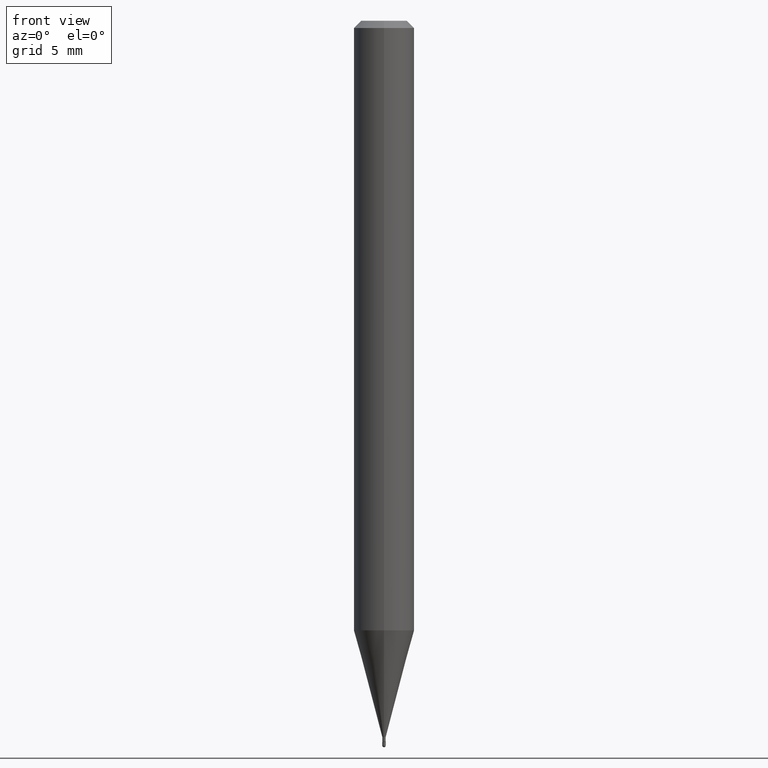
[diagram: clean part render]
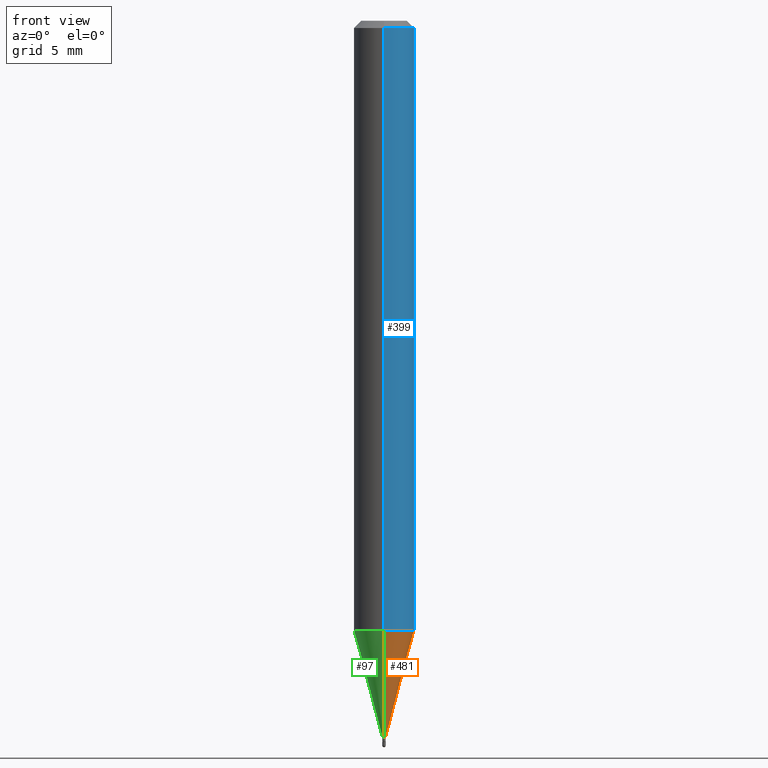
[diagram: same view with three faces highlighted in distinct colors, each labeled with its STEP entity id]
A machine part, front view with three faces highlighted in distinct colors.
Their STEP definitions:

[orange] entity #481 — the highlighted conical surface has half-angle 15 deg.
#6 = LINE ( 'NONE', #8, #76 ) ;
#8 = CARTESIAN_POINT ( 'NONE',  ( -2.444036937186523075E-17, -0.003500000000005088017, -1.478999999999999648 ) ) ;
#30 = DIRECTION ( 'NONE',  ( -2.445471304092721818E-29, 3.491477761697311641E-15, 1.000000000000000000 ) ) ;
#40 = EDGE_CURVE ( 'NONE', #250, #254, #111, .T. ) ;
#47 = ORIENTED_EDGE ( 'NONE', *, *, #148, .T. ) ;
#66 = AXIS2_PLACEMENT_3D ( 'NONE', #247, #396, #208 ) ;
#76 = VECTOR ( 'NONE', #275, 39.37007874015748854 ) ;
#77 = AXIS2_PLACEMENT_3D ( 'NONE', #224, #505, #381 ) ;
#111 = CIRCLE ( 'NONE', #66, 0.003499999999999924179 ) ;
#133 = VERTEX_POINT ( 'NONE', #496 ) ;
#148 = EDGE_CURVE ( 'NONE', #254, #361, #332, .T. ) ;
#149 = DIRECTION ( 'NONE',  ( 1.839019923739602682E-15, 0.2588190451025252914, 0.9659258262890670910 ) ) ;
#184 = EDGE_LOOP ( 'NONE', ( #440, #47, #401, #350 ) ) ;
#208 = DIRECTION ( 'NONE',  ( -6.982962677686265133E-15, -1.000000000000000000, 0.000000000000000000 ) ) ;
#224 = CARTESIAN_POINT ( 'NONE',  ( 3.078381292588917151E-29, -4.395103637941402881E-15, -1.258809002353436624 ) ) ;
#234 = EDGE_CURVE ( 'NONE', #250, #133, #6, .T. ) ;
#247 = CARTESIAN_POINT ( 'NONE',  ( 3.616852058753135017E-29, -5.163895609550323406E-15, -1.478999999999999648 ) ) ;
#249 = CARTESIAN_POINT ( 'NONE',  ( 4.440892098500932831E-16, 0.06249999999999561462, -1.258809002353437068 ) ) ;
#250 = VERTEX_POINT ( 'NONE', #468 ) ;
#254 = VERTEX_POINT ( 'NONE', #433 ) ;
#261 = FACE_OUTER_BOUND ( 'NONE', #184, .T. ) ;
#275 = DIRECTION ( 'NONE',  ( -1.807323732225332900E-15, -0.2588190451025185190, 0.9659258262890689783 ) ) ;
#297 = CIRCLE ( 'NONE', #77, 0.06250000000000000000 ) ;
#308 = AXIS2_PLACEMENT_3D ( 'NONE', #495, #30, #452 ) ;
#332 = LINE ( 'NONE', #500, #386 ) ;
#350 = ORIENTED_EDGE ( 'NONE', *, *, #234, .F. ) ;
#361 = VERTEX_POINT ( 'NONE', #249 ) ;
#381 = DIRECTION ( 'NONE',  ( -6.982962677686265922E-15, -1.000000000000000000, 4.370956789862821150E-15 ) ) ;
#386 = VECTOR ( 'NONE', #149, 39.37007874015748143 ) ;
#396 = DIRECTION ( 'NONE',  ( -2.445471304092721818E-29, 3.491477761697311641E-15, 1.000000000000000000 ) ) ;
#401 = ORIENTED_EDGE ( 'NONE', *, *, #462, .F. ) ;
#425 = CONICAL_SURFACE ( 'NONE', #308, 0.003499999999999924179, 0.2617993877991506291 ) ;
#433 = CARTESIAN_POINT ( 'NONE',  ( 2.344791028008663525E-16, 0.003499999999994760341, -1.478999999999999648 ) ) ;
#440 = ORIENTED_EDGE ( 'NONE', *, *, #40, .T. ) ;
#452 = DIRECTION ( 'NONE',  ( -6.982962677686265133E-15, -1.000000000000000000, 0.000000000000000000 ) ) ;
#462 = EDGE_CURVE ( 'NONE', #133, #361, #297, .T. ) ;
#468 = CARTESIAN_POINT ( 'NONE',  ( -2.444036937186523075E-17, -0.003500000000005088017, -1.478999999999999648 ) ) ;
#481 = ADVANCED_FACE ( 'NONE', ( #261 ), #425, .T. ) ;
#495 = CARTESIAN_POINT ( 'NONE',  ( 3.616852058753135017E-29, -5.163895609550323406E-15, -1.478999999999999648 ) ) ;
#496 = CARTESIAN_POINT ( 'NONE',  ( -4.364351673553609038E-16, -0.06250000000000439926, -1.258809002353436401 ) ) ;
#500 = CARTESIAN_POINT ( 'NONE',  ( 2.486899575163913210E-17, 0.003499999999994760341, -1.478999999999999648 ) ) ;
#505 = DIRECTION ( 'NONE',  ( -2.445471304092721818E-29, 3.491477761697311641E-15, 1.000000000000000000 ) ) ;

[blue] entity #399 — the highlighted cylindrical surface (edge-blend (fillet) strip) has radius 1.5875 mm, axis along (-0, 0, 1).
#3 = EDGE_CURVE ( 'NONE', #361, #146, #306, .T. ) ;
#7 = DIRECTION ( 'NONE',  ( -6.982962677686265922E-15, -1.000000000000000000, 3.483106191921935554E-15 ) ) ;
#9 = EDGE_CURVE ( 'NONE', #384, #146, #501, .T. ) ;
#51 = ORIENTED_EDGE ( 'NONE', *, *, #9, .F. ) ;
#55 = CARTESIAN_POINT ( 'NONE',  ( -4.364351673553916201E-16, -0.06250000000000000000, 2.182173601060819776E-16 ) ) ;
#77 = AXIS2_PLACEMENT_3D ( 'NONE', #224, #505, #381 ) ;
#133 = VERTEX_POINT ( 'NONE', #496 ) ;
#134 = FACE_OUTER_BOUND ( 'NONE', #426, .T. ) ;
#145 = CARTESIAN_POINT ( 'NONE',  ( 4.440892098500935790E-16, 0.06249999999999995143, -0.01499999999999997863 ) ) ;
#146 = VERTEX_POINT ( 'NONE', #145 ) ;
#165 = VECTOR ( 'NONE', #466, 39.37007874015748143 ) ;
#198 = AXIS2_PLACEMENT_3D ( 'NONE', #281, #451, #333 ) ;
#203 = CARTESIAN_POINT ( 'NONE',  ( 4.440892098500625669E-16, 0.06250000000000000000, -2.182173601060819776E-16 ) ) ;
#224 = CARTESIAN_POINT ( 'NONE',  ( 3.078381292588917151E-29, -4.395103637941402881E-15, -1.258809002353436624 ) ) ;
#244 = AXIS2_PLACEMENT_3D ( 'NONE', #476, #471, #7 ) ;
#249 = CARTESIAN_POINT ( 'NONE',  ( 4.440892098500932831E-16, 0.06249999999999561462, -1.258809002353437068 ) ) ;
#262 = CARTESIAN_POINT ( 'NONE',  ( -4.364351673553912750E-16, -0.06250000000000005551, -0.01499999999999954321 ) ) ;
#276 = LINE ( 'NONE', #55, #347 ) ;
#281 = CARTESIAN_POINT ( 'NONE',  ( 0.000000000000000000, 0.000000000000000000, 0.000000000000000000 ) ) ;
#284 = CYLINDRICAL_SURFACE ( 'NONE', #198, 0.06250000000000000000 ) ;
#297 = CIRCLE ( 'NONE', #77, 0.06250000000000000000 ) ;
#300 = EDGE_CURVE ( 'NONE', #133, #384, #276, .T. ) ;
#306 = LINE ( 'NONE', #203, #165 ) ;
#320 = ORIENTED_EDGE ( 'NONE', *, *, #462, .T. ) ;
#333 = DIRECTION ( 'NONE',  ( -6.982962677686265922E-15, -1.000000000000000000, 3.491477761697311641E-15 ) ) ;
#347 = VECTOR ( 'NONE', #354, 39.37007874015748143 ) ;
#354 = DIRECTION ( 'NONE',  ( -2.445471304092721818E-29, 3.491477761697311641E-15, 1.000000000000000000 ) ) ;
#361 = VERTEX_POINT ( 'NONE', #249 ) ;
#364 = ORIENTED_EDGE ( 'NONE', *, *, #300, .F. ) ;
#366 = ORIENTED_EDGE ( 'NONE', *, *, #3, .T. ) ;
#381 = DIRECTION ( 'NONE',  ( -6.982962677686265922E-15, -1.000000000000000000, 4.370956789862821150E-15 ) ) ;
#384 = VERTEX_POINT ( 'NONE', #262 ) ;
#399 = ADVANCED_FACE ( 'NONE', ( #134 ), #284, .T. ) ;
#426 = EDGE_LOOP ( 'NONE', ( #320, #366, #51, #364 ) ) ;
#451 = DIRECTION ( 'NONE',  ( -2.445471304092721818E-29, 3.491477761697311641E-15, 1.000000000000000000 ) ) ;
#462 = EDGE_CURVE ( 'NONE', #133, #361, #297, .T. ) ;
#466 = DIRECTION ( 'NONE',  ( -2.445471304092721818E-29, 3.491477761697311641E-15, 1.000000000000000000 ) ) ;
#471 = DIRECTION ( 'NONE',  ( -2.445471304092721818E-29, 3.491477761697311641E-15, 1.000000000000000000 ) ) ;
#476 = CARTESIAN_POINT ( 'NONE',  ( 3.668206956139024136E-31, -5.237216642545884237E-17, -0.01499999999999976179 ) ) ;
#496 = CARTESIAN_POINT ( 'NONE',  ( -4.364351673553609038E-16, -0.06250000000000439926, -1.258809002353436401 ) ) ;
#501 = CIRCLE ( 'NONE', #244, 0.06250000000000000000 ) ;
#505 = DIRECTION ( 'NONE',  ( -2.445471304092721818E-29, 3.491477761697311641E-15, 1.000000000000000000 ) ) ;

[green] entity #97 — the highlighted conical surface has half-angle 15 deg.
#6 = LINE ( 'NONE', #8, #76 ) ;
#8 = CARTESIAN_POINT ( 'NONE',  ( -2.444036937186523075E-17, -0.003500000000005088017, -1.478999999999999648 ) ) ;
#24 = CIRCLE ( 'NONE', #94, 0.06250000000000000000 ) ;
#54 = CARTESIAN_POINT ( 'NONE',  ( 3.078381292588917151E-29, -4.395103637941402881E-15, -1.258809002353436624 ) ) ;
#59 = EDGE_CURVE ( 'NONE', #361, #133, #24, .T. ) ;
#76 = VECTOR ( 'NONE', #275, 39.37007874015748854 ) ;
#80 = FACE_OUTER_BOUND ( 'NONE', #497, .T. ) ;
#94 = AXIS2_PLACEMENT_3D ( 'NONE', #54, #125, #171 ) ;
#97 = ADVANCED_FACE ( 'NONE', ( #80 ), #258, .T. ) ;
#113 = ORIENTED_EDGE ( 'NONE', *, *, #162, .T. ) ;
#120 = DIRECTION ( 'NONE',  ( -2.445471304092721818E-29, 3.491477761697311641E-15, 1.000000000000000000 ) ) ;
#123 = AXIS2_PLACEMENT_3D ( 'NONE', #339, #512, #419 ) ;
#125 = DIRECTION ( 'NONE',  ( -2.445471304092721818E-29, 3.491477761697311641E-15, 1.000000000000000000 ) ) ;
#133 = VERTEX_POINT ( 'NONE', #496 ) ;
#148 = EDGE_CURVE ( 'NONE', #254, #361, #332, .T. ) ;
#149 = DIRECTION ( 'NONE',  ( 1.839019923739602682E-15, 0.2588190451025252914, 0.9659258262890670910 ) ) ;
#162 = EDGE_CURVE ( 'NONE', #254, #250, #465, .T. ) ;
#163 = DIRECTION ( 'NONE',  ( -6.982962677686265133E-15, -1.000000000000000000, 0.000000000000000000 ) ) ;
#171 = DIRECTION ( 'NONE',  ( -6.982962677686265922E-15, -1.000000000000000000, 4.370956789862821150E-15 ) ) ;
#234 = EDGE_CURVE ( 'NONE', #250, #133, #6, .T. ) ;
#249 = CARTESIAN_POINT ( 'NONE',  ( 4.440892098500932831E-16, 0.06249999999999561462, -1.258809002353437068 ) ) ;
#250 = VERTEX_POINT ( 'NONE', #468 ) ;
#254 = VERTEX_POINT ( 'NONE', #433 ) ;
#258 = CONICAL_SURFACE ( 'NONE', #424, 0.003499999999999924179, 0.2617993877991506291 ) ;
#275 = DIRECTION ( 'NONE',  ( -1.807323732225332900E-15, -0.2588190451025185190, 0.9659258262890689783 ) ) ;
#285 = ORIENTED_EDGE ( 'NONE', *, *, #234, .T. ) ;
#319 = ORIENTED_EDGE ( 'NONE', *, *, #148, .F. ) ;
#332 = LINE ( 'NONE', #500, #386 ) ;
#338 = CARTESIAN_POINT ( 'NONE',  ( 3.616852058753135017E-29, -5.163895609550323406E-15, -1.478999999999999648 ) ) ;
#339 = CARTESIAN_POINT ( 'NONE',  ( 3.616852058753135017E-29, -5.163895609550323406E-15, -1.478999999999999648 ) ) ;
#361 = VERTEX_POINT ( 'NONE', #249 ) ;
#386 = VECTOR ( 'NONE', #149, 39.37007874015748143 ) ;
#419 = DIRECTION ( 'NONE',  ( -6.982962677686265133E-15, -1.000000000000000000, 0.000000000000000000 ) ) ;
#424 = AXIS2_PLACEMENT_3D ( 'NONE', #338, #120, #163 ) ;
#433 = CARTESIAN_POINT ( 'NONE',  ( 2.344791028008663525E-16, 0.003499999999994760341, -1.478999999999999648 ) ) ;
#465 = CIRCLE ( 'NONE', #123, 0.003499999999999924179 ) ;
#468 = CARTESIAN_POINT ( 'NONE',  ( -2.444036937186523075E-17, -0.003500000000005088017, -1.478999999999999648 ) ) ;
#470 = ORIENTED_EDGE ( 'NONE', *, *, #59, .F. ) ;
#496 = CARTESIAN_POINT ( 'NONE',  ( -4.364351673553609038E-16, -0.06250000000000439926, -1.258809002353436401 ) ) ;
#497 = EDGE_LOOP ( 'NONE', ( #319, #113, #285, #470 ) ) ;
#500 = CARTESIAN_POINT ( 'NONE',  ( 2.486899575163913210E-17, 0.003499999999994760341, -1.478999999999999648 ) ) ;
#512 = DIRECTION ( 'NONE',  ( -2.445471304092721818E-29, 3.491477761697311641E-15, 1.000000000000000000 ) ) ;